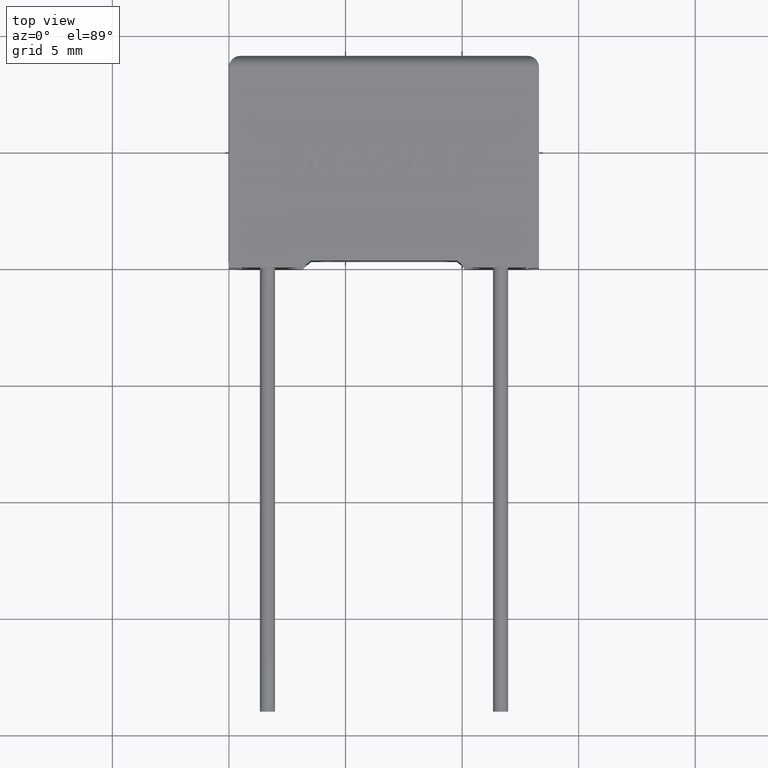
[diagram: clean part render]
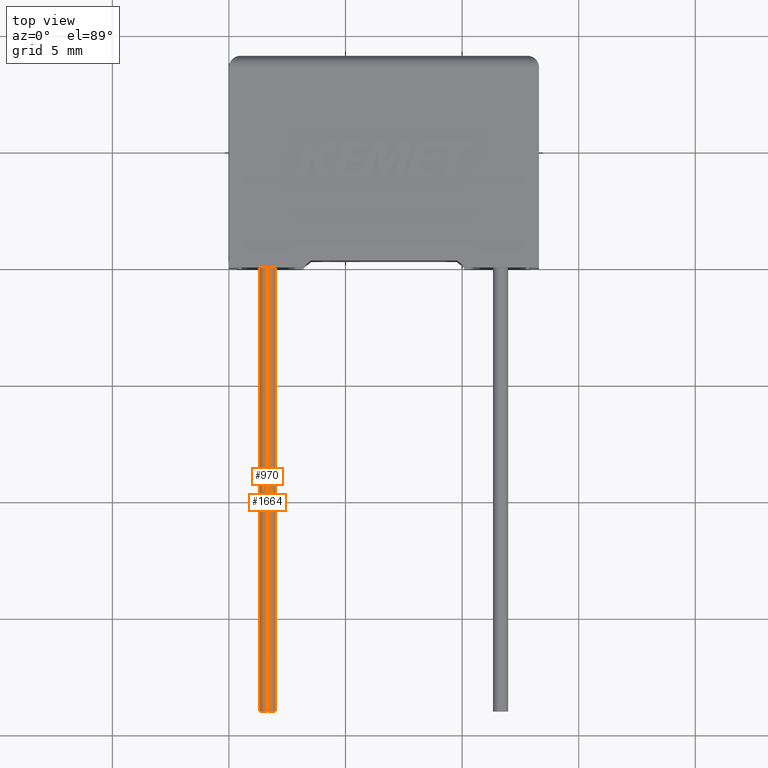
[diagram: same view with one multi-face feature highlighted, each face labeled with its STEP entity id]
A machine part, top view. The highlighted faces form ONE feature: a constant-radius fillet chain: 2 tangent blend faces with common blend radius 0.325 mm. The faces share edges in the B-rep.
Their STEP definitions:
[1] entity #1664 (Cylinder):
#60 = CIRCLE ( 'NONE', #1774, 0.3250000000000003997 ) ;
#154 = AXIS2_PLACEMENT_3D ( 'NONE', #1748, #2493, #2478 ) ;
#283 = VERTEX_POINT ( 'NONE', #2912 ) ;
#322 = LINE ( 'NONE', #1800, #2320 ) ;
#627 = ORIENTED_EDGE ( 'NONE', *, *, #2103, .F. ) ;
#671 = DIRECTION ( 'NONE',  ( 0.000000000000000000, 0.000000000000000000, 1.000000000000000000 ) ) ;
#684 = DIRECTION ( 'NONE',  ( -0.000000000000000000, 1.000000000000000000, -0.000000000000000000 ) ) ;
#691 = DIRECTION ( 'NONE',  ( 0.000000000000000000, -1.000000000000000000, 0.000000000000000000 ) ) ;
#703 = DIRECTION ( 'NONE',  ( -0.000000000000000000, 1.000000000000000000, -0.000000000000000000 ) ) ;
#908 = CARTESIAN_POINT ( 'NONE',  ( 1.650000000000000355, -19.00000000000000000, 2.100000000000000089 ) ) ;
#913 = CARTESIAN_POINT ( 'NONE',  ( 1.650000000000000355, 0.7500000000000000000, 2.100000000000000089 ) ) ;
#922 = CYLINDRICAL_SURFACE ( 'NONE', #1366, 0.3250000000000006217 ) ;
#1148 = EDGE_LOOP ( 'NONE', ( #627, #1552, #1990, #2051 ) ) ;
#1366 = AXIS2_PLACEMENT_3D ( 'NONE', #908, #684, #671 ) ;
#1432 = VECTOR ( 'NONE', #703, 1000.000000000000000 ) ;
#1457 = VERTEX_POINT ( 'NONE', #2125 ) ;
#1476 = EDGE_CURVE ( 'NONE', #2143, #2987, #322, .T. ) ;
#1552 = ORIENTED_EDGE ( 'NONE', *, *, #2234, .T. ) ;
#1629 = DIRECTION ( 'NONE',  ( 0.000000000000000000, 0.000000000000000000, -1.000000000000000000 ) ) ;
#1664 = ADVANCED_FACE ( 'NONE', ( #2141 ), #922, .T. ) ;
#1748 = CARTESIAN_POINT ( 'NONE',  ( 1.650000000000000355, -19.00000000000000000, 2.100000000000000089 ) ) ;
#1774 = AXIS2_PLACEMENT_3D ( 'NONE', #913, #691, #1629 ) ;
#1791 = CARTESIAN_POINT ( 'NONE',  ( 1.650000000000000355, 0.7500000000000000000, 2.425000000000001155 ) ) ;
#1800 = CARTESIAN_POINT ( 'NONE',  ( 1.650000000000000355, -19.00000000000000000, 2.425000000000001155 ) ) ;
#1879 = LINE ( 'NONE', #2155, #1432 ) ;
#1957 = DIRECTION ( 'NONE',  ( -0.000000000000000000, 1.000000000000000000, -0.000000000000000000 ) ) ;
#1990 = ORIENTED_EDGE ( 'NONE', *, *, #2147, .T. ) ;
#2051 = ORIENTED_EDGE ( 'NONE', *, *, #1476, .F. ) ;
#2103 = EDGE_CURVE ( 'NONE', #283, #2143, #2180, .T. ) ;
#2125 = CARTESIAN_POINT ( 'NONE',  ( 1.650000000000000355, 0.7500000000000000000, 1.774999999999999911 ) ) ;
#2141 = FACE_OUTER_BOUND ( 'NONE', #1148, .T. ) ;
#2143 = VERTEX_POINT ( 'NONE', #2508 ) ;
#2147 = EDGE_CURVE ( 'NONE', #1457, #2987, #60, .T. ) ;
#2155 = CARTESIAN_POINT ( 'NONE',  ( 1.650000000000000355, -19.00000000000000000, 1.774999999999999911 ) ) ;
#2180 = CIRCLE ( 'NONE', #154, 0.3250000000000003997 ) ;
#2234 = EDGE_CURVE ( 'NONE', #283, #1457, #1879, .T. ) ;
#2320 = VECTOR ( 'NONE', #1957, 1000.000000000000000 ) ;
#2478 = DIRECTION ( 'NONE',  ( 0.000000000000000000, 0.000000000000000000, -1.000000000000000000 ) ) ;
#2493 = DIRECTION ( 'NONE',  ( 0.000000000000000000, -1.000000000000000000, 0.000000000000000000 ) ) ;
#2508 = CARTESIAN_POINT ( 'NONE',  ( 1.650000000000000355, -19.00000000000000000, 2.425000000000001155 ) ) ;
#2912 = CARTESIAN_POINT ( 'NONE',  ( 1.650000000000000355, -19.00000000000000000, 1.774999999999999911 ) ) ;
#2987 = VERTEX_POINT ( 'NONE', #1791 ) ;
[2] entity #970 (Cylinder):
#13 = CIRCLE ( 'NONE', #1239, 0.3250000000000003997 ) ;
#198 = DIRECTION ( 'NONE',  ( 0.000000000000000000, -1.000000000000000000, 0.000000000000000000 ) ) ;
#283 = VERTEX_POINT ( 'NONE', #2912 ) ;
#322 = LINE ( 'NONE', #1800, #2320 ) ;
#399 = DIRECTION ( 'NONE',  ( 0.000000000000000000, 0.000000000000000000, 1.000000000000000000 ) ) ;
#429 = DIRECTION ( 'NONE',  ( 0.000000000000000000, 0.000000000000000000, -1.000000000000000000 ) ) ;
#703 = DIRECTION ( 'NONE',  ( -0.000000000000000000, 1.000000000000000000, -0.000000000000000000 ) ) ;
#970 = ADVANCED_FACE ( 'NONE', ( #1375 ), #1561, .T. ) ;
#1066 = ORIENTED_EDGE ( 'NONE', *, *, #1849, .T. ) ;
#1239 = AXIS2_PLACEMENT_3D ( 'NONE', #1967, #1723, #2856 ) ;
#1375 = FACE_OUTER_BOUND ( 'NONE', #2853, .T. ) ;
#1405 = CARTESIAN_POINT ( 'NONE',  ( 1.650000000000000355, 0.7500000000000000000, 2.100000000000000089 ) ) ;
#1432 = VECTOR ( 'NONE', #703, 1000.000000000000000 ) ;
#1457 = VERTEX_POINT ( 'NONE', #2125 ) ;
#1476 = EDGE_CURVE ( 'NONE', #2143, #2987, #322, .T. ) ;
#1479 = CIRCLE ( 'NONE', #2271, 0.3250000000000003997 ) ;
#1561 = CYLINDRICAL_SURFACE ( 'NONE', #2525, 0.3250000000000006217 ) ;
#1723 = DIRECTION ( 'NONE',  ( 0.000000000000000000, -1.000000000000000000, 0.000000000000000000 ) ) ;
#1791 = CARTESIAN_POINT ( 'NONE',  ( 1.650000000000000355, 0.7500000000000000000, 2.425000000000001155 ) ) ;
#1800 = CARTESIAN_POINT ( 'NONE',  ( 1.650000000000000355, -19.00000000000000000, 2.425000000000001155 ) ) ;
#1849 = EDGE_CURVE ( 'NONE', #2987, #1457, #1479, .T. ) ;
#1879 = LINE ( 'NONE', #2155, #1432 ) ;
#1894 = ORIENTED_EDGE ( 'NONE', *, *, #1476, .T. ) ;
#1957 = DIRECTION ( 'NONE',  ( -0.000000000000000000, 1.000000000000000000, -0.000000000000000000 ) ) ;
#1967 = CARTESIAN_POINT ( 'NONE',  ( 1.650000000000000355, -19.00000000000000000, 2.100000000000000089 ) ) ;
#2125 = CARTESIAN_POINT ( 'NONE',  ( 1.650000000000000355, 0.7500000000000000000, 1.774999999999999911 ) ) ;
#2143 = VERTEX_POINT ( 'NONE', #2508 ) ;
#2155 = CARTESIAN_POINT ( 'NONE',  ( 1.650000000000000355, -19.00000000000000000, 1.774999999999999911 ) ) ;
#2234 = EDGE_CURVE ( 'NONE', #283, #1457, #1879, .T. ) ;
#2271 = AXIS2_PLACEMENT_3D ( 'NONE', #1405, #198, #429 ) ;
#2283 = CARTESIAN_POINT ( 'NONE',  ( 1.650000000000000355, -19.00000000000000000, 2.100000000000000089 ) ) ;
#2320 = VECTOR ( 'NONE', #1957, 1000.000000000000000 ) ;
#2458 = EDGE_CURVE ( 'NONE', #2143, #283, #13, .T. ) ;
#2508 = CARTESIAN_POINT ( 'NONE',  ( 1.650000000000000355, -19.00000000000000000, 2.425000000000001155 ) ) ;
#2511 = DIRECTION ( 'NONE',  ( -0.000000000000000000, 1.000000000000000000, -0.000000000000000000 ) ) ;
#2525 = AXIS2_PLACEMENT_3D ( 'NONE', #2283, #2511, #399 ) ;
#2596 = ORIENTED_EDGE ( 'NONE', *, *, #2234, .F. ) ;
#2853 = EDGE_LOOP ( 'NONE', ( #2596, #2904, #1894, #1066 ) ) ;
#2856 = DIRECTION ( 'NONE',  ( 0.000000000000000000, 0.000000000000000000, -1.000000000000000000 ) ) ;
#2904 = ORIENTED_EDGE ( 'NONE', *, *, #2458, .F. ) ;
#2912 = CARTESIAN_POINT ( 'NONE',  ( 1.650000000000000355, -19.00000000000000000, 1.774999999999999911 ) ) ;
#2987 = VERTEX_POINT ( 'NONE', #1791 ) ;